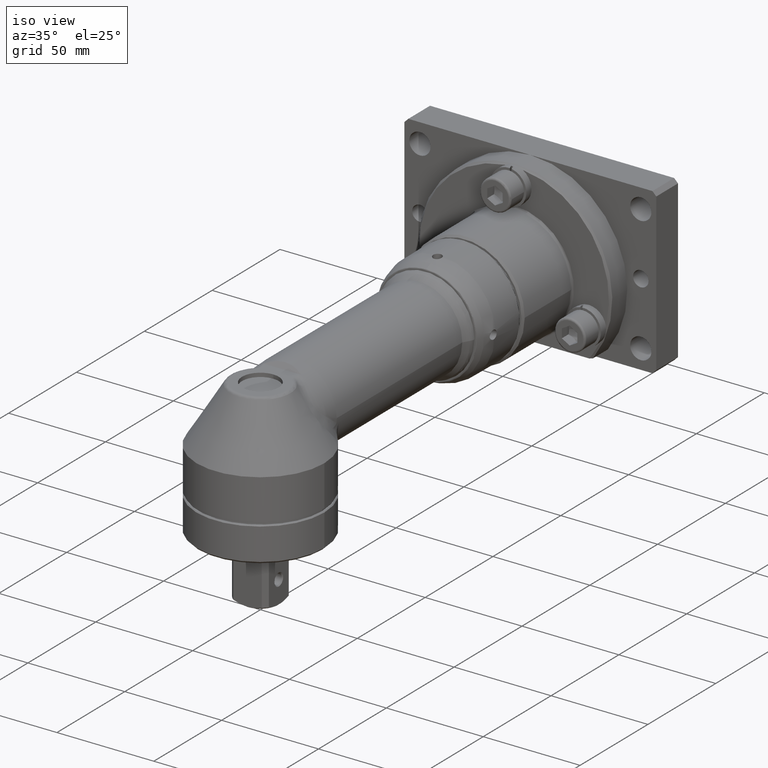
[diagram: clean part render]
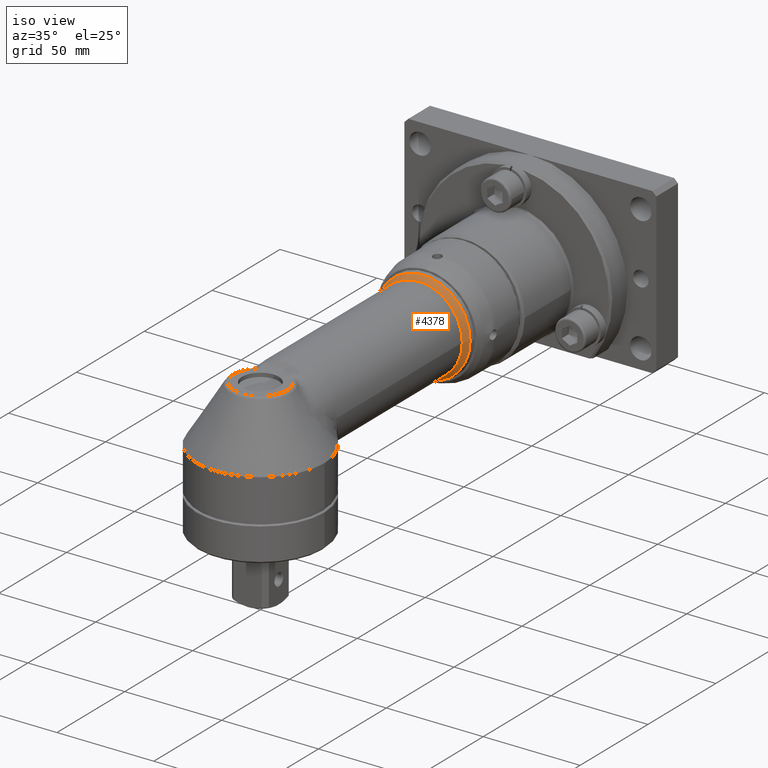
[diagram: same view with one face highlighted and labeled with its STEP entity id]
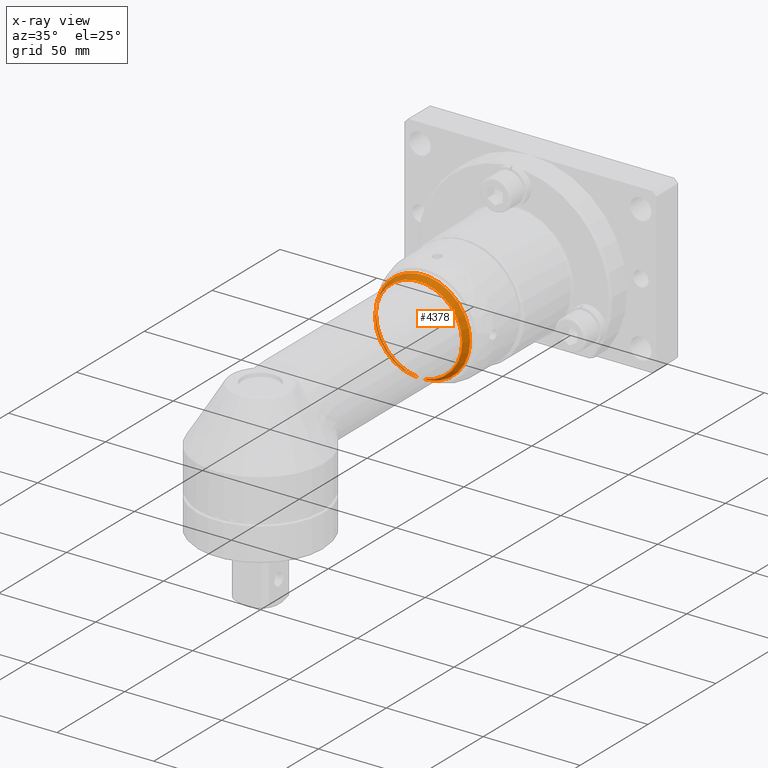
[diagram: x-ray of the same camera — body ghosted, the highlighted face saturated]
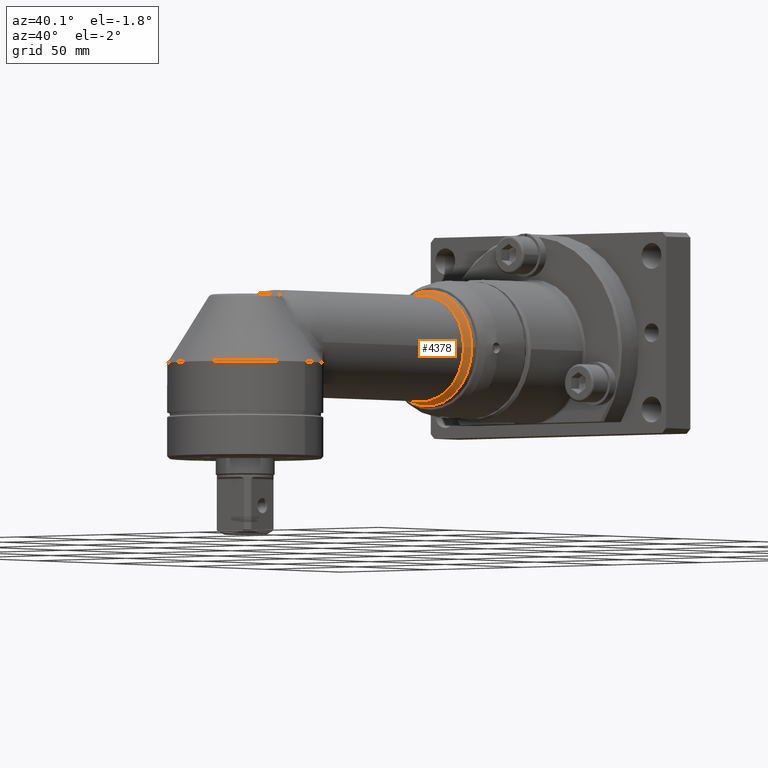
[diagram: same view with one face highlighted and labeled with its STEP entity id]
A machine part, iso view. The second image highlights one B-rep face of the part: STEP entity #4378.
The next image is the same camera in x-ray: the body ghosted, the highlighted face saturated — about 9% of this face is hidden behind the body in this view.
A second angle (auxiliary view) of the same face is appended — the face is thin or edge-on in the first view.
In plain terms, the highlighted conical surface has half-angle 30 deg.
Its self-contained STEP definition (entity closure, byte-faithful):
#147=CONICAL_SURFACE('',#4733,23.75,0.5235987755983);
#205=LINE('',#7518,#424);
#424=VECTOR('',#5535,23.75);
#787=FACE_OUTER_BOUND('',#1047,.T.);
#1047=EDGE_LOOP('',(#3117,#3118,#3119,#3120,#3121,#3122));
#1374=CIRCLE('',#4734,24.3301270189222);
#1375=CIRCLE('',#4735,24.3301270189222);
#1376=CIRCLE('',#4736,22.5);
#1377=CIRCLE('',#4737,22.5);
#1784=VERTEX_POINT('',#7513);
#1785=VERTEX_POINT('',#7514);
#1786=VERTEX_POINT('',#7517);
#1787=VERTEX_POINT('',#7519);
#2291=EDGE_CURVE('',#1784,#1785,#1374,.T.);
#2292=EDGE_CURVE('',#1785,#1784,#1375,.T.);
#2293=EDGE_CURVE('',#1785,#1786,#205,.T.);
#2294=EDGE_CURVE('',#1786,#1787,#1376,.T.);
#2295=EDGE_CURVE('',#1787,#1786,#1377,.T.);
#3117=ORIENTED_EDGE('',*,*,#2291,.F.);
#3118=ORIENTED_EDGE('',*,*,#2292,.F.);
#3119=ORIENTED_EDGE('',*,*,#2293,.T.);
#3120=ORIENTED_EDGE('',*,*,#2294,.T.);
#3121=ORIENTED_EDGE('',*,*,#2295,.T.);
#3122=ORIENTED_EDGE('',*,*,#2293,.F.);
#4378=ADVANCED_FACE('',(#787),#147,.T.);
#4733=AXIS2_PLACEMENT_3D('',#7512,#5529,#5530);
#4734=AXIS2_PLACEMENT_3D('',#7515,#5531,#5532);
#4735=AXIS2_PLACEMENT_3D('',#7516,#5533,#5534);
#4736=AXIS2_PLACEMENT_3D('',#7520,#5536,#5537);
#4737=AXIS2_PLACEMENT_3D('',#7521,#5538,#5539);
#5529=DIRECTION('center_axis',(5.4632067194463E-16,1.,-1.08559870364431E-30));
#5530=DIRECTION('ref_axis',(-1.,6.70462140602243E-16,-2.39031970244941E-15));
#5531=DIRECTION('center_axis',(6.70462140602243E-16,1.,-7.88860905221015E-31));
#5532=DIRECTION('ref_axis',(1.,-6.70462140602243E-16,2.32908736249204E-15));
#5533=DIRECTION('center_axis',(6.70462140602243E-16,1.,-7.88860905221015E-31));
#5534=DIRECTION('ref_axis',(1.,-6.70462140602243E-16,2.32908736249204E-15));
#5535=DIRECTION('',(-0.500000000000001,-0.866025403784438,-1.13392751126734E-15));
#5536=DIRECTION('center_axis',(5.4632067194463E-16,1.,-1.08559870364431E-30));
#5537=DIRECTION('ref_axis',(1.,-5.4632067194463E-16,2.39031970244941E-15));
#5538=DIRECTION('center_axis',(5.4632067194463E-16,1.,-1.08559870364431E-30));
#5539=DIRECTION('ref_axis',(1.,-5.4632067194463E-16,2.39031970244941E-15));
#7512=CARTESIAN_POINT('Origin',(6.48879207767835E-14,118.834936490539,-1.29088471060921E-28));
#7513=CARTESIAN_POINT('',(-24.3301270189221,119.839745962156,-5.51772007587694E-14));
#7514=CARTESIAN_POINT('',(24.3301270189222,119.839745962156,5.51772007587691E-14));
#7515=CARTESIAN_POINT('Origin',(6.48048902622636E-14,119.839745962156,-1.48979060882871E-15));
#7516=CARTESIAN_POINT('Origin',(6.48048902622636E-14,119.839745962156,-1.48979060882871E-15));
#7517=CARTESIAN_POINT('',(22.5000000000001,116.669872981078,5.10267380070301E-14));
#7518=CARTESIAN_POINT('',(23.7500000000001,118.834936490539,5.38615567851984E-14));
#7519=CARTESIAN_POINT('',(-22.4999999999999,116.669872981078,-5.37821933051119E-14));
#7520=CARTESIAN_POINT('Origin',(6.3705101825492E-14,116.669872981078,-1.26738080921742E-28));
#7521=CARTESIAN_POINT('Origin',(6.3705101825492E-14,116.669872981078,-1.26738080921742E-28));